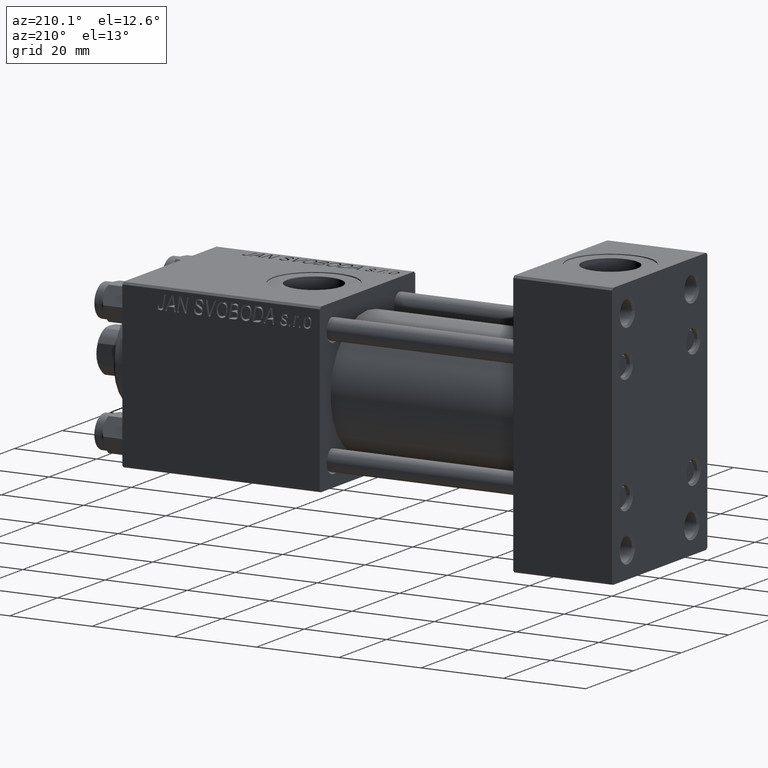
[diagram: clean part render]
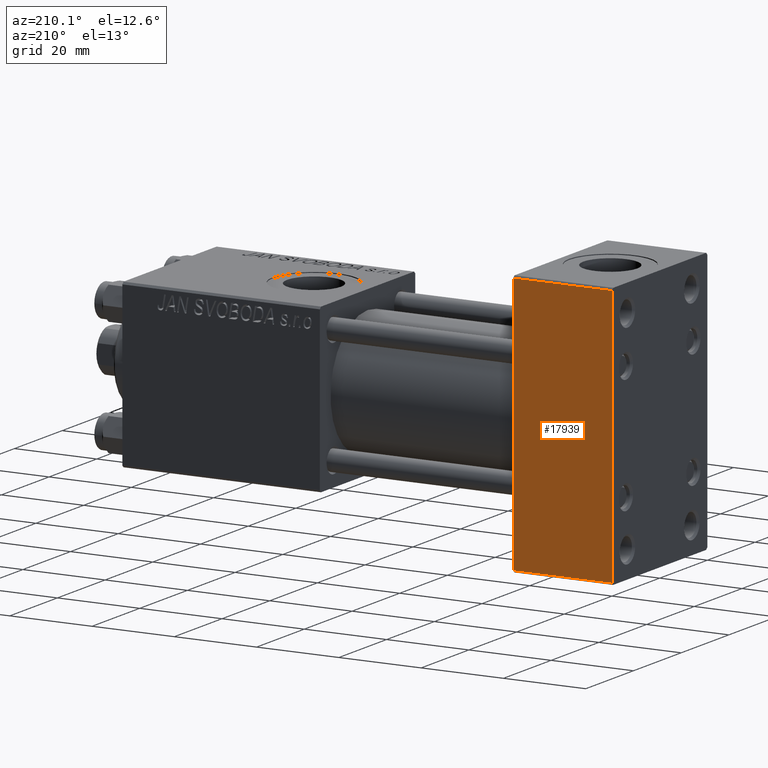
[diagram: same view with one face highlighted and labeled with its STEP entity id]
A machine part, auxiliary view. The second image highlights one B-rep face of the part: STEP entity #17939.
In plain terms, the highlighted planar face has unit normal (0, 1, 0).
Its self-contained STEP definition (entity closure, byte-faithful):
#430 = LINE ( 'NONE', #31200, #8655 ) ;
#2007 = DIRECTION ( 'NONE',  ( 1.000000000000000000, 0.000000000000000000, 0.000000000000000000 ) ) ;
#2260 = DIRECTION ( 'NONE',  ( 0.000000000000000000, 0.000000000000000000, -1.000000000000000000 ) ) ;
#5517 = CARTESIAN_POINT ( 'NONE',  ( 0.000000000000000000, 19.99999999999999645, -31.50000000000000000 ) ) ;
#6034 = DIRECTION ( 'NONE',  ( 0.000000000000000000, 0.000000000000000000, -1.000000000000000000 ) ) ;
#8655 = VECTOR ( 'NONE', #27404, 1000.000000000000000 ) ;
#11909 = PLANE ( 'NONE',  #38886 ) ;
#12424 = EDGE_LOOP ( 'NONE', ( #16897, #31243, #45163, #44736 ) ) ;
#15060 = VERTEX_POINT ( 'NONE', #30022 ) ;
#16897 = ORIENTED_EDGE ( 'NONE', *, *, #21672, .T. ) ;
#17939 = ADVANCED_FACE ( 'NONE', ( #32516 ), #11909, .T. ) ;
#18376 = VECTOR ( 'NONE', #2007, 1000.000000000000000 ) ;
#19519 = EDGE_CURVE ( 'NONE', #15060, #32302, #44400, .T. ) ;
#19692 = VECTOR ( 'NONE', #2260, 1000.000000000000000 ) ;
#20210 = CARTESIAN_POINT ( 'NONE',  ( 24.00000000000000000, 19.99999999999999645, 31.50000000000000000 ) ) ;
#21672 = EDGE_CURVE ( 'NONE', #36410, #36608, #33751, .T. ) ;
#23985 = EDGE_CURVE ( 'NONE', #36608, #32302, #430, .T. ) ;
#25754 = EDGE_CURVE ( 'NONE', #15060, #36410, #32268, .T. ) ;
#27404 = DIRECTION ( 'NONE',  ( -1.000000000000000000, 0.000000000000000000, 0.000000000000000000 ) ) ;
#28716 = DIRECTION ( 'NONE',  ( 0.000000000000000000, -0.000000000000000000, 1.000000000000000000 ) ) ;
#30022 = CARTESIAN_POINT ( 'NONE',  ( 0.000000000000000000, 19.99999999999999645, 31.50000000000000000 ) ) ;
#31200 = CARTESIAN_POINT ( 'NONE',  ( 24.00000000000000000, 19.99999999999999645, -31.50000000000000000 ) ) ;
#31243 = ORIENTED_EDGE ( 'NONE', *, *, #23985, .T. ) ;
#32268 = LINE ( 'NONE', #40094, #18376 ) ;
#32302 = VERTEX_POINT ( 'NONE', #5517 ) ;
#32516 = FACE_OUTER_BOUND ( 'NONE', #12424, .T. ) ;
#32714 = VECTOR ( 'NONE', #6034, 1000.000000000000000 ) ;
#32764 = DIRECTION ( 'NONE',  ( -0.000000000000000000, 1.000000000000000000, 0.000000000000000000 ) ) ;
#33751 = LINE ( 'NONE', #48159, #32714 ) ;
#36316 = CARTESIAN_POINT ( 'NONE',  ( 0.000000000000000000, 19.99999999999999645, 32.00000000000000000 ) ) ;
#36410 = VERTEX_POINT ( 'NONE', #20210 ) ;
#36608 = VERTEX_POINT ( 'NONE', #41479 ) ;
#38886 = AXIS2_PLACEMENT_3D ( 'NONE', #47921, #32764, #28716 ) ;
#40094 = CARTESIAN_POINT ( 'NONE',  ( 24.00000000000000000, 19.99999999999999645, 31.50000000000000000 ) ) ;
#41479 = CARTESIAN_POINT ( 'NONE',  ( 24.00000000000000000, 19.99999999999999645, -31.50000000000000000 ) ) ;
#44400 = LINE ( 'NONE', #36316, #19692 ) ;
#44736 = ORIENTED_EDGE ( 'NONE', *, *, #25754, .T. ) ;
#45163 = ORIENTED_EDGE ( 'NONE', *, *, #19519, .F. ) ;
#47921 = CARTESIAN_POINT ( 'NONE',  ( 24.00000000000000000, 19.99999999999999645, 32.00000000000000000 ) ) ;
#48159 = CARTESIAN_POINT ( 'NONE',  ( 24.00000000000000000, 19.99999999999999645, 32.00000000000000000 ) ) ;